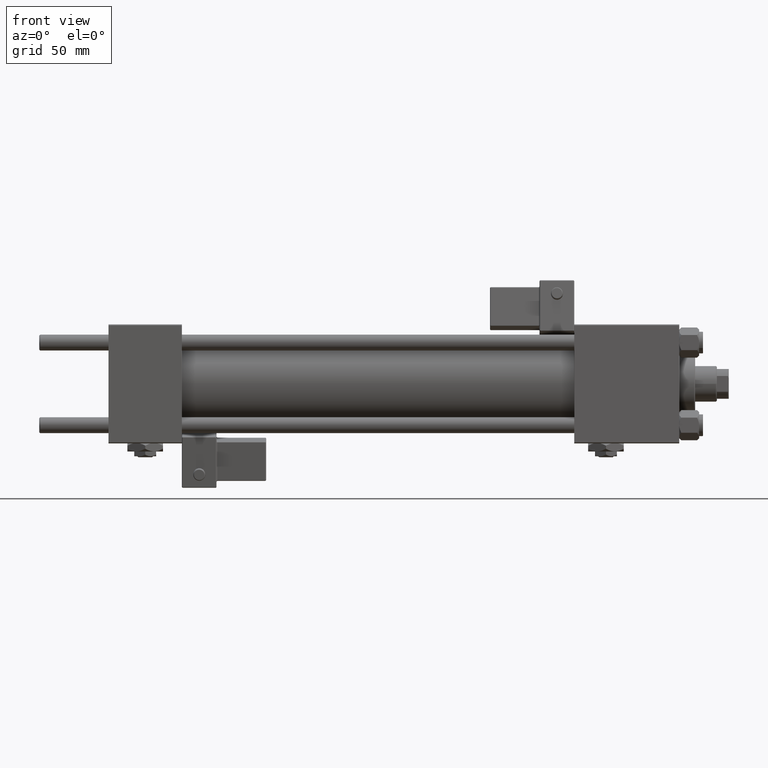
[diagram: clean part render]
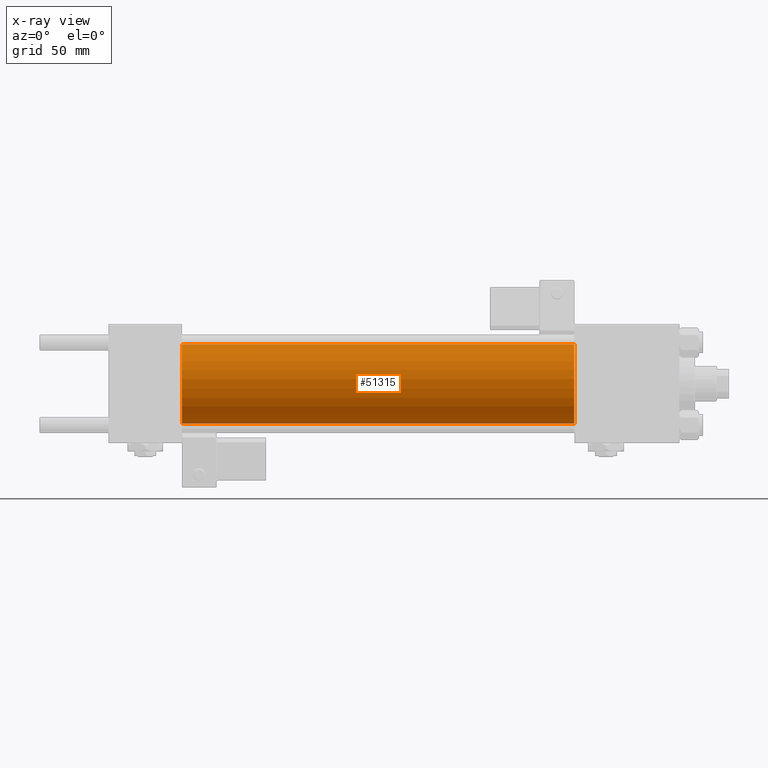
[diagram: x-ray — body ghosted, one internal face saturated and labeled with its STEP entity id]
A machine part, front view, then the same camera in x-ray: the body is ghosted and one INTERNAL B-rep face — a face not visible from any outside direction — is saturated and labeled: STEP entity #51315.
In plain terms, the highlighted cylindrical surface (partial cylindrical patch) has radius 20 mm, axis along (-1, -0, -0).
Its self-contained STEP definition (entity closure, byte-faithful):
#1354 = CARTESIAN_POINT ( 'NONE',  ( 37.00000000000000000, 0.000000000000000000, 20.00000000000000000 ) ) ;
#3977 = DIRECTION ( 'NONE',  ( 0.000000000000000000, 0.000000000000000000, -1.000000000000000000 ) ) ;
#4242 = CARTESIAN_POINT ( 'NONE',  ( 37.00000000000000000, 0.000000000000000000, 0.000000000000000000 ) ) ;
#4338 = AXIS2_PLACEMENT_3D ( 'NONE', #6101, #47980, #21962 ) ;
#6101 = CARTESIAN_POINT ( 'NONE',  ( 235.0000000000000284, 0.000000000000000000, 0.000000000000000000 ) ) ;
#6270 = CARTESIAN_POINT ( 'NONE',  ( 235.0000000000000284, 0.000000000000000000, 20.00000000000000000 ) ) ;
#7109 = VERTEX_POINT ( 'NONE', #37294 ) ;
#10536 = CIRCLE ( 'NONE', #45480, 20.00000000000000000 ) ;
#10781 = DIRECTION ( 'NONE',  ( -1.000000000000000000, -0.000000000000000000, -0.000000000000000000 ) ) ;
#11835 = LINE ( 'NONE', #44417, #46699 ) ;
#12970 = DIRECTION ( 'NONE',  ( 1.000000000000000000, 0.000000000000000000, 0.000000000000000000 ) ) ;
#14255 = LINE ( 'NONE', #43021, #32314 ) ;
#14483 = EDGE_CURVE ( 'NONE', #24176, #14778, #14255, .T. ) ;
#14778 = VERTEX_POINT ( 'NONE', #1354 ) ;
#15607 = DIRECTION ( 'NONE',  ( 1.000000000000000000, 0.000000000000000000, 0.000000000000000000 ) ) ;
#15623 = EDGE_CURVE ( 'NONE', #24176, #18494, #10536, .T. ) ;
#17582 = FACE_OUTER_BOUND ( 'NONE', #44292, .T. ) ;
#18494 = VERTEX_POINT ( 'NONE', #38583 ) ;
#20530 = CIRCLE ( 'NONE', #48539, 20.00000000000000000 ) ;
#21168 = ORIENTED_EDGE ( 'NONE', *, *, #30106, .F. ) ;
#21678 = CYLINDRICAL_SURFACE ( 'NONE', #4338, 20.00000000000000000 ) ;
#21962 = DIRECTION ( 'NONE',  ( 0.000000000000000000, 0.000000000000000000, 1.000000000000000000 ) ) ;
#24029 = EDGE_CURVE ( 'NONE', #18494, #7109, #11835, .T. ) ;
#24176 = VERTEX_POINT ( 'NONE', #6270 ) ;
#27115 = DIRECTION ( 'NONE',  ( -1.000000000000000000, -0.000000000000000000, -0.000000000000000000 ) ) ;
#30106 = EDGE_CURVE ( 'NONE', #14778, #7109, #20530, .T. ) ;
#32289 = ORIENTED_EDGE ( 'NONE', *, *, #15623, .T. ) ;
#32314 = VECTOR ( 'NONE', #27115, 1000.000000000000000 ) ;
#37294 = CARTESIAN_POINT ( 'NONE',  ( 37.00000000000000000, 2.449293598294706513E-15, -20.00000000000000000 ) ) ;
#38583 = CARTESIAN_POINT ( 'NONE',  ( 235.0000000000000284, 2.449293598294706513E-15, -20.00000000000000000 ) ) ;
#39170 = ORIENTED_EDGE ( 'NONE', *, *, #14483, .F. ) ;
#40273 = DIRECTION ( 'NONE',  ( 0.000000000000000000, 0.000000000000000000, -1.000000000000000000 ) ) ;
#43021 = CARTESIAN_POINT ( 'NONE',  ( 235.0000000000000284, 0.000000000000000000, 20.00000000000000000 ) ) ;
#44292 = EDGE_LOOP ( 'NONE', ( #32289, #53746, #21168, #39170 ) ) ;
#44417 = CARTESIAN_POINT ( 'NONE',  ( 235.0000000000000284, 2.449293598294706513E-15, -20.00000000000000000 ) ) ;
#45480 = AXIS2_PLACEMENT_3D ( 'NONE', #52604, #15607, #40273 ) ;
#46699 = VECTOR ( 'NONE', #10781, 1000.000000000000000 ) ;
#47980 = DIRECTION ( 'NONE',  ( -1.000000000000000000, -0.000000000000000000, -0.000000000000000000 ) ) ;
#48539 = AXIS2_PLACEMENT_3D ( 'NONE', #4242, #12970, #3977 ) ;
#51315 = ADVANCED_FACE ( 'NONE', ( #17582 ), #21678, .F. ) ;
#52604 = CARTESIAN_POINT ( 'NONE',  ( 235.0000000000000284, 0.000000000000000000, 0.000000000000000000 ) ) ;
#53746 = ORIENTED_EDGE ( 'NONE', *, *, #24029, .T. ) ;